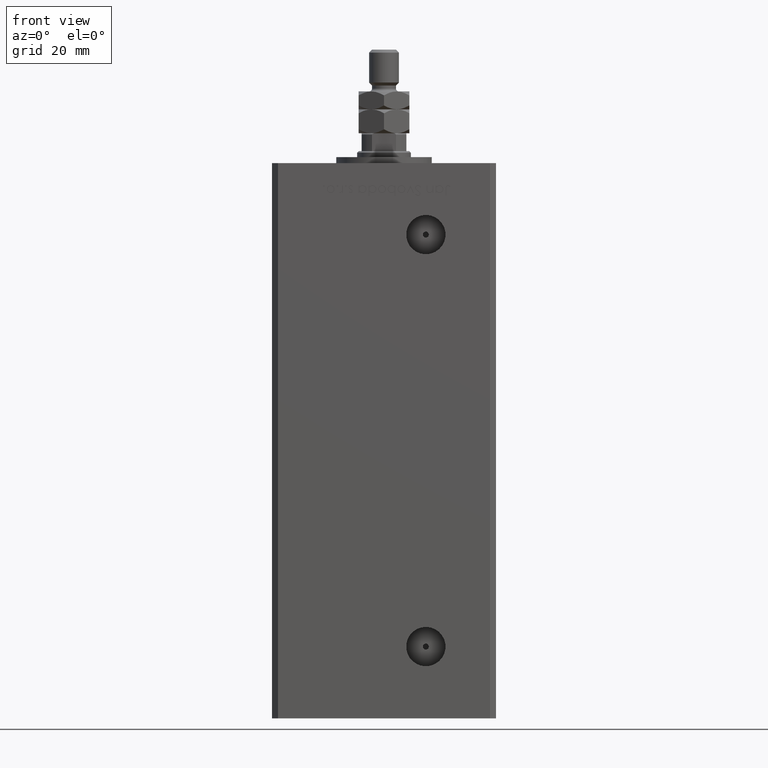
[diagram: clean part render]
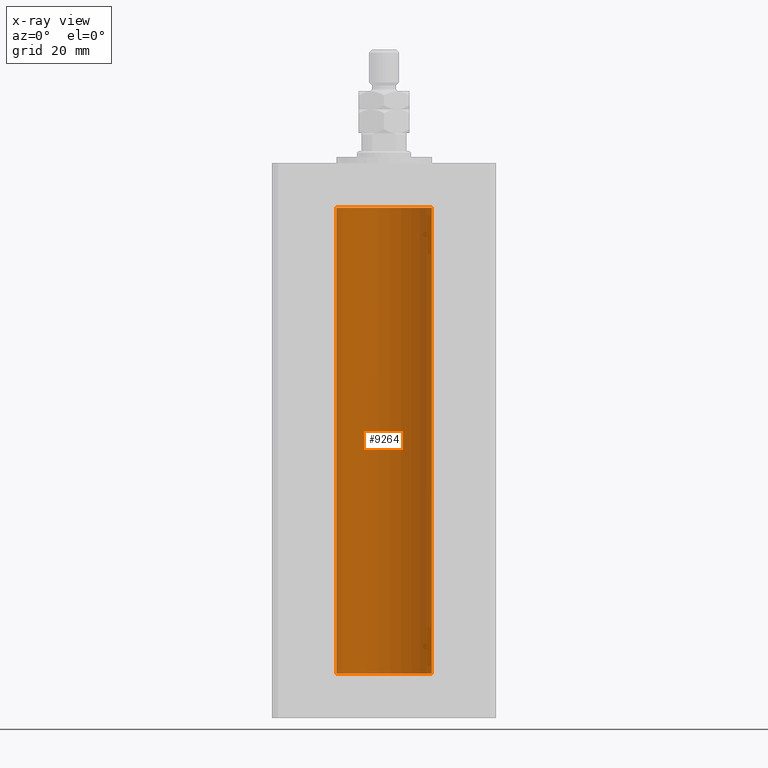
[diagram: x-ray — body ghosted, one internal face saturated and labeled with its STEP entity id]
A machine part, front view, then the same camera in x-ray: the body is ghosted and one INTERNAL B-rep face — a face not visible from any outside direction — is saturated and labeled: STEP entity #9264.
In plain terms, the highlighted cylindrical surface (partial cylindrical patch) has radius 16 mm, axis along (-0, -0, -1).
Its self-contained STEP definition (entity closure, byte-faithful):
#300 = VECTOR ( 'NONE', #5344, 1000.000000000000000 ) ;
#521 = EDGE_CURVE ( 'NONE', #20227, #28060, #35450, .T. ) ;
#2573 = AXIS2_PLACEMENT_3D ( 'NONE', #11663, #27976, #11932 ) ;
#2947 = FACE_OUTER_BOUND ( 'NONE', #23895, .T. ) ;
#5279 = VERTEX_POINT ( 'NONE', #49066 ) ;
#5344 = DIRECTION ( 'NONE',  ( -0.000000000000000000, -0.000000000000000000, -1.000000000000000000 ) ) ;
#6775 = CYLINDRICAL_SURFACE ( 'NONE', #2573, 16.00000000000000000 ) ;
#8912 = LINE ( 'NONE', #13526, #300 ) ;
#9264 = ADVANCED_FACE ( 'NONE', ( #2947 ), #6775, .F. ) ;
#11663 = CARTESIAN_POINT ( 'NONE',  ( 0.000000000000000000, 0.000000000000000000, 156.0000000000000000 ) ) ;
#11932 = DIRECTION ( 'NONE',  ( -1.000000000000000000, 0.000000000000000000, 0.000000000000000000 ) ) ;
#13084 = CARTESIAN_POINT ( 'NONE',  ( 0.000000000000000000, 0.000000000000000000, 0.000000000000000000 ) ) ;
#13334 = VECTOR ( 'NONE', #34460, 1000.000000000000000 ) ;
#13526 = CARTESIAN_POINT ( 'NONE',  ( 16.00000000000000000, 1.959434878635765131E-15, 156.0000000000000000 ) ) ;
#14215 = DIRECTION ( 'NONE',  ( 1.000000000000000000, 0.000000000000000000, 0.000000000000000000 ) ) ;
#14755 = DIRECTION ( 'NONE',  ( -0.000000000000000000, 0.000000000000000000, 1.000000000000000000 ) ) ;
#17101 = LINE ( 'NONE', #21960, #13334 ) ;
#18072 = AXIS2_PLACEMENT_3D ( 'NONE', #13084, #46489, #25591 ) ;
#19964 = EDGE_CURVE ( 'NONE', #28060, #5279, #17101, .T. ) ;
#20227 = VERTEX_POINT ( 'NONE', #45487 ) ;
#20302 = CARTESIAN_POINT ( 'NONE',  ( 16.00000000000000000, 1.959434878635765131E-15, 0.000000000000000000 ) ) ;
#21960 = CARTESIAN_POINT ( 'NONE',  ( -16.00000000000000000, 0.000000000000000000, 156.0000000000000000 ) ) ;
#23895 = EDGE_LOOP ( 'NONE', ( #39632, #25040, #52363, #49134 ) ) ;
#25040 = ORIENTED_EDGE ( 'NONE', *, *, #521, .T. ) ;
#25591 = DIRECTION ( 'NONE',  ( 1.000000000000000000, 0.000000000000000000, 0.000000000000000000 ) ) ;
#27976 = DIRECTION ( 'NONE',  ( -0.000000000000000000, -0.000000000000000000, -1.000000000000000000 ) ) ;
#28060 = VERTEX_POINT ( 'NONE', #44253 ) ;
#32847 = AXIS2_PLACEMENT_3D ( 'NONE', #51964, #14755, #14215 ) ;
#34460 = DIRECTION ( 'NONE',  ( -0.000000000000000000, -0.000000000000000000, -1.000000000000000000 ) ) ;
#35450 = CIRCLE ( 'NONE', #32847, 16.00000000000000000 ) ;
#39632 = ORIENTED_EDGE ( 'NONE', *, *, #48894, .F. ) ;
#40008 = EDGE_CURVE ( 'NONE', #52280, #5279, #51861, .T. ) ;
#44253 = CARTESIAN_POINT ( 'NONE',  ( -16.00000000000000000, 0.000000000000000000, 156.0000000000000000 ) ) ;
#45487 = CARTESIAN_POINT ( 'NONE',  ( 16.00000000000000000, 1.959434878635765131E-15, 156.0000000000000000 ) ) ;
#46489 = DIRECTION ( 'NONE',  ( -0.000000000000000000, 0.000000000000000000, 1.000000000000000000 ) ) ;
#48894 = EDGE_CURVE ( 'NONE', #20227, #52280, #8912, .T. ) ;
#49066 = CARTESIAN_POINT ( 'NONE',  ( -16.00000000000000000, 0.000000000000000000, 0.000000000000000000 ) ) ;
#49134 = ORIENTED_EDGE ( 'NONE', *, *, #40008, .F. ) ;
#51861 = CIRCLE ( 'NONE', #18072, 16.00000000000000000 ) ;
#51964 = CARTESIAN_POINT ( 'NONE',  ( 0.000000000000000000, 0.000000000000000000, 156.0000000000000000 ) ) ;
#52280 = VERTEX_POINT ( 'NONE', #20302 ) ;
#52363 = ORIENTED_EDGE ( 'NONE', *, *, #19964, .T. ) ;